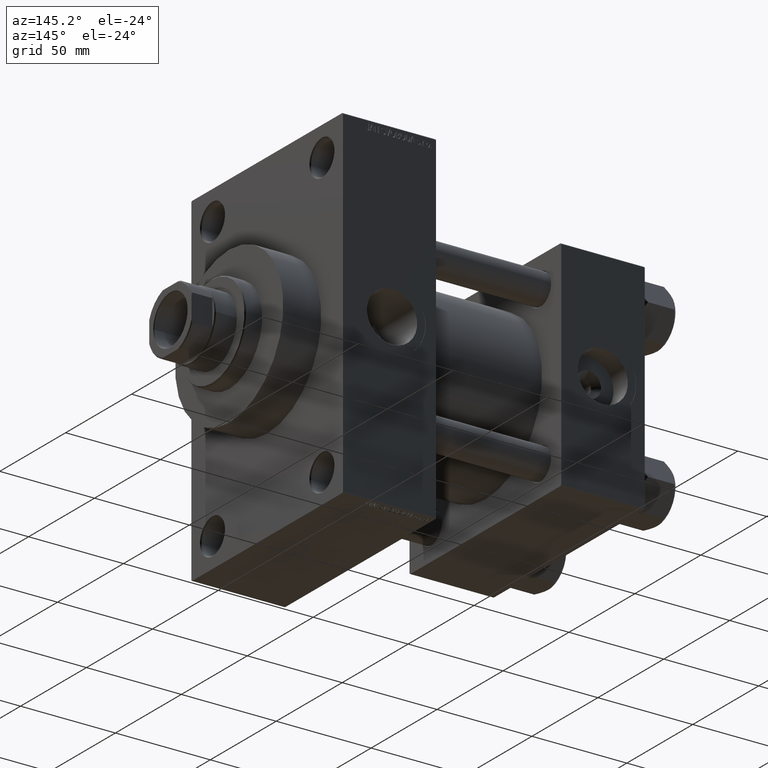
[diagram: clean part render]
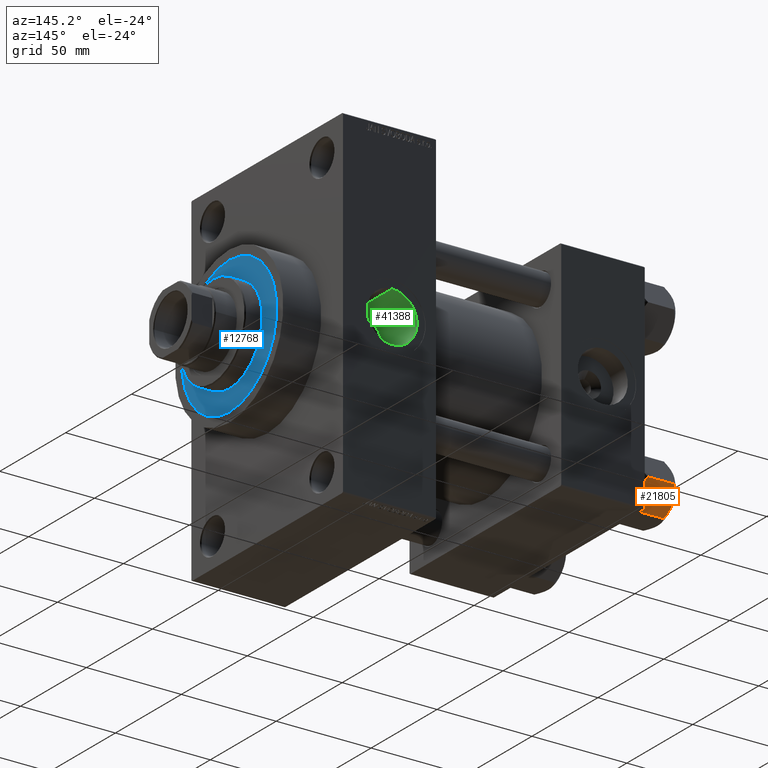
[diagram: same view with three faces highlighted in distinct colors, each labeled with its STEP entity id]
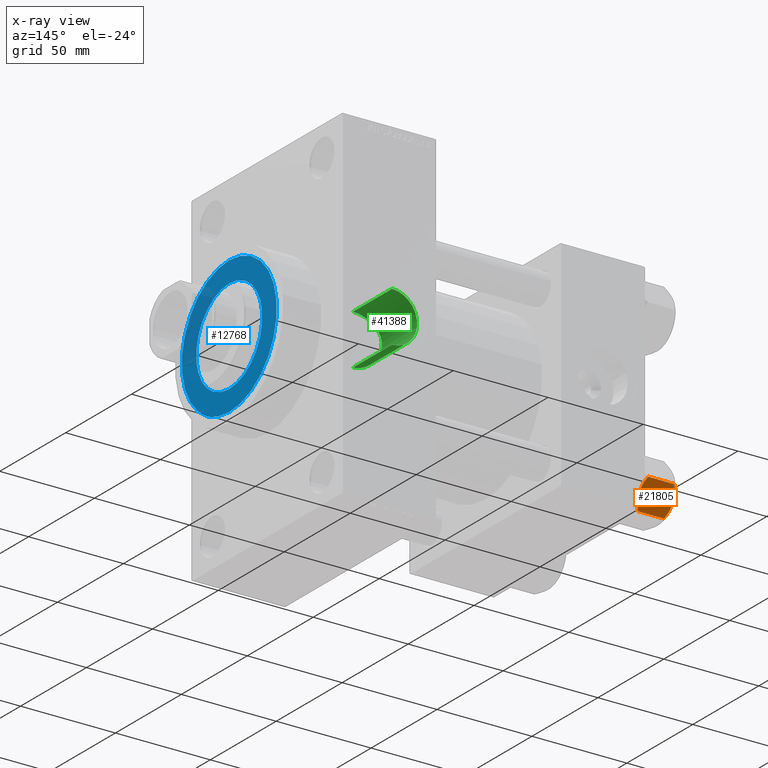
[diagram: x-ray of the same camera — body ghosted, the three highlighted faces saturated]
A machine part, auxiliary view with three faces highlighted in distinct colors.
The next image is the same camera in x-ray (body ghosted, the three faces saturated) — at least one of them is partly hidden behind the body in this view.
Their STEP definitions:

[orange] entity #21805 — the highlighted planar face has unit normal (0, -0.866, 0.5).
#545 = CARTESIAN_POINT ( 'NONE',  ( -15.52647173767732980, -0.1619957022864788043, -2.000000000000000000 ) ) ;
#819 = B_SPLINE_CURVE_WITH_KNOTS ( 'NONE', 3,
 ( #24653, #5610, #16383, #4851, #16640, #39864, #46594, #39119 ),
 .UNSPECIFIED., .F., .F.,
 ( 4, 2, 2, 4 ),
 ( 0.007890825462474451713, 0.01181022244528557794, 0.01376992093669113758, 0.01572961942809669722 ),
 .UNSPECIFIED. ) ;
#907 = CARTESIAN_POINT ( 'NONE',  ( -7.809999999999999609, -13.52731680711293727, -18.00000000000000000 ) ) ;
#988 = CARTESIAN_POINT ( 'NONE',  ( -12.38621571200405391, -5.601078687526916511, -0.05089381635300645190 ) ) ;
#3080 = CARTESIAN_POINT ( 'NONE',  ( -15.52647173767732980, -0.1619957022864788043, -16.00000000000000000 ) ) ;
#3160 = CARTESIAN_POINT ( 'NONE',  ( -15.61999999999999567, 8.023367828467702033E-15, -16.00000000000000000 ) ) ;
#3344 = DIRECTION ( 'NONE',  ( -0.000000000000000000, -0.000000000000000000, 1.000000000000000000 ) ) ;
#3966 = VECTOR ( 'NONE', #8742, 999.9999999999998863 ) ;
#4590 = EDGE_CURVE ( 'NONE', #35631, #41621, #32601, .T. ) ;
#4694 = VERTEX_POINT ( 'NONE', #545 ) ;
#4851 = CARTESIAN_POINT ( 'NONE',  ( -9.439480280627259745, -10.70497417113492311, -0.7317196846281081024 ) ) ;
#5108 = VECTOR ( 'NONE', #40088, 999.9999999999998863 ) ;
#5240 = CARTESIAN_POINT ( 'NONE',  ( -14.92760668674625002, -1.199260397376427090, -1.411989271640064825 ) ) ;
#5610 = CARTESIAN_POINT ( 'NONE',  ( -11.05297796109637787, -7.910314210667872103, 9.086969458144130882E-15 ) ) ;
#5678 = ORIENTED_EDGE ( 'NONE', *, *, #47580, .F. ) ;
#6084 = LINE ( 'NONE', #28640, #5108 ) ;
#6985 = LINE ( 'NONE', #22242, #46682 ) ;
#8092 = CARTESIAN_POINT ( 'NONE',  ( -7.809999999999999609, -13.52731680711293727, -18.00000000000000000 ) ) ;
#8467 = ORIENTED_EDGE ( 'NONE', *, *, #47167, .F. ) ;
#8742 = DIRECTION ( 'NONE',  ( -0.4999999999999994449, 0.8660254037844390407, 0.000000000000000000 ) ) ;
#8832 = B_SPLINE_CURVE_WITH_KNOTS ( 'NONE', 3,
 ( #37251, #18267, #33513, #44969, #47983, #26274, #10750, #26029 ),
 .UNSPECIFIED., .F., .F.,
 ( 4, 2, 2, 4 ),
 ( 4.472842641813524291E-07, 0.003945636373369312659, 0.005918230917921874813, 0.007890825462474436100 ),
 .UNSPECIFIED. ) ;
#9085 = VECTOR ( 'NONE', #25553, 1000.000000000000000 ) ;
#10069 = CARTESIAN_POINT ( 'NONE',  ( -15.61999999999999567, 8.023367828467702033E-15, -1.999999999999998224 ) ) ;
#10105 = CARTESIAN_POINT ( 'NONE',  ( -14.92394044919338825, -1.205610507090610461, -16.56553707812500065 ) ) ;
#10595 = CARTESIAN_POINT ( 'NONE',  ( -13.02784502466562699, -4.489744118371570281, -17.80281335400755083 ) ) ;
#10750 = CARTESIAN_POINT ( 'NONE',  ( -11.38181071908714692, -7.340759166634859945, -18.00000000000001421 ) ) ;
#11067 = CARTESIAN_POINT ( 'NONE',  ( -11.71500000000000874, -6.763658403556459753, 0.000000000000000000 ) ) ;
#11992 = LINE ( 'NONE', #39223, #3966 ) ;
#12713 = ORIENTED_EDGE ( 'NONE', *, *, #14435, .F. ) ;
#14104 = CARTESIAN_POINT ( 'NONE',  ( -13.99051971937274530, -2.822342635977989289, -17.26828031537188934 ) ) ;
#14435 = EDGE_CURVE ( 'NONE', #16475, #35631, #8832, .T. ) ;
#14815 = ORIENTED_EDGE ( 'NONE', *, *, #16165, .F. ) ;
#14905 = CARTESIAN_POINT ( 'NONE',  ( -7.809999999999999609, -13.52731680711293727, -16.00000000000000000 ) ) ;
#15675 = CARTESIAN_POINT ( 'NONE',  ( -7.903528262322674358, -13.36532110482643354, -2.000000000000000000 ) ) ;
#16165 = EDGE_CURVE ( 'NONE', #39768, #16475, #11992, .T. ) ;
#16383 = CARTESIAN_POINT ( 'NONE',  ( -10.40215497533437805, -9.037572688741340343, -0.1971866459924474513 ) ) ;
#16475 = VERTEX_POINT ( 'NONE', #36720 ) ;
#16640 = CARTESIAN_POINT ( 'NONE',  ( -9.124083218049237942, -11.25125790807803838, -0.9473872146228101698 ) ) ;
#16693 = PLANE ( 'NONE',  #27346 ) ;
#16885 = CARTESIAN_POINT ( 'NONE',  ( -11.71500000000000874, -6.763658403556459753, -18.00000000000000000 ) ) ;
#18045 = EDGE_CURVE ( 'NONE', #41879, #23836, #819, .T. ) ;
#18110 = CARTESIAN_POINT ( 'NONE',  ( -12.37702203890362540, -5.617002596445037632, -18.00000000000000711 ) ) ;
#18267 = CARTESIAN_POINT ( 'NONE',  ( -8.502393313253753249, -12.32805640973648664, -16.58801072835993651 ) ) ;
#19635 = ORIENTED_EDGE ( 'NONE', *, *, #45049, .T. ) ;
#21805 = ADVANCED_FACE ( 'NONE', ( #24704 ), #16693, .F. ) ;
#21853 = CARTESIAN_POINT ( 'NONE',  ( -11.71500000000000874, -6.763658403556459753, -18.00000000000000000 ) ) ;
#21987 = DIRECTION ( 'NONE',  ( 0.4999999999999994449, -0.8660254037844390407, 0.000000000000000000 ) ) ;
#22242 = CARTESIAN_POINT ( 'NONE',  ( -7.809999999999999609, -13.52731680711293727, -1.999999999999998224 ) ) ;
#22799 = ORIENTED_EDGE ( 'NONE', *, *, #18045, .F. ) ;
#23836 = VERTEX_POINT ( 'NONE', #15675 ) ;
#24653 = CARTESIAN_POINT ( 'NONE',  ( -11.71500000000000874, -6.763658403556459753, 0.000000000000000000 ) ) ;
#24704 = FACE_OUTER_BOUND ( 'NONE', #30567, .T. ) ;
#25553 = DIRECTION ( 'NONE',  ( -0.000000000000000000, -0.000000000000000000, 1.000000000000000000 ) ) ;
#26029 = CARTESIAN_POINT ( 'NONE',  ( -11.71500000000000874, -6.763658403556459753, -18.00000000000000000 ) ) ;
#26274 = CARTESIAN_POINT ( 'NONE',  ( -11.04378428799595468, -7.926238119585997666, -17.94910618364700028 ) ) ;
#27188 = CARTESIAN_POINT ( 'NONE',  ( -7.809999999999999609, -13.52731680711293727, -16.00000000000000000 ) ) ;
#27346 = AXIS2_PLACEMENT_3D ( 'NONE', #907, #42909, #46645 ) ;
#27537 = CARTESIAN_POINT ( 'NONE',  ( -13.04337073483128329, -4.462852799541069615, -0.2430846701012900901 ) ) ;
#27635 = VERTEX_POINT ( 'NONE', #36013 ) ;
#28038 = CARTESIAN_POINT ( 'NONE',  ( -12.04818928091285635, -6.186557640478051567, 9.103910117089220044E-15 ) ) ;
#28640 = CARTESIAN_POINT ( 'NONE',  ( -7.809999999999999609, -13.52731680711293727, -1.999999999999998224 ) ) ;
#29519 = EDGE_CURVE ( 'NONE', #40533, #41716, #49479, .T. ) ;
#29894 = B_SPLINE_CURVE_WITH_KNOTS ( 'NONE', 3,
 ( #38519, #5240, #35271, #35510, #27537, #988, #28038, #31044 ),
 .UNSPECIFIED., .F., .F.,
 ( 4, 2, 2, 4 ),
 ( 4.472842641982724416E-07, 0.003945636373369324802, 0.005918230917921887824, 0.007890825462474451713 ),
 .UNSPECIFIED. ) ;
#30025 = EDGE_CURVE ( 'NONE', #41716, #4694, #6084, .T. ) ;
#30567 = EDGE_LOOP ( 'NONE', ( #14815, #19635, #40251, #22799, #5678, #33522, #42205, #8467, #45359, #12713 ) ) ;
#31044 = CARTESIAN_POINT ( 'NONE',  ( -11.71500000000000874, -6.763658403556459753, 0.000000000000000000 ) ) ;
#32391 = VECTOR ( 'NONE', #3344, 1000.000000000000000 ) ;
#32601 = B_SPLINE_CURVE_WITH_KNOTS ( 'NONE', 3,
 ( #21853, #18110, #10595, #14104, #32618, #10105, #47835, #3080 ),
 .UNSPECIFIED., .F., .F.,
 ( 4, 2, 2, 4 ),
 ( 0.007890825462474436100, 0.01181022244528555712, 0.01376992093669111850, 0.01572961942809667987 ),
 .UNSPECIFIED. ) ;
#32618 = CARTESIAN_POINT ( 'NONE',  ( -14.30591678195076533, -2.276058899034876681, -17.05261278537718894 ) ) ;
#33513 = CARTESIAN_POINT ( 'NONE',  ( -9.114548888011787753, -11.26777185211903820, -17.08577173959730899 ) ) ;
#33522 = ORIENTED_EDGE ( 'NONE', *, *, #30025, .F. ) ;
#34596 = LINE ( 'NONE', #8092, #32391 ) ;
#35271 = CARTESIAN_POINT ( 'NONE',  ( -14.31545111198821552, -2.259544954993873311, -0.9142282604026915616 ) ) ;
#35510 = CARTESIAN_POINT ( 'NONE',  ( -13.36540581434588226, -3.905071680002305534, -0.3836066851120543686 ) ) ;
#35631 = VERTEX_POINT ( 'NONE', #16885 ) ;
#36013 = CARTESIAN_POINT ( 'NONE',  ( -7.809999999999999609, -13.52731680711293727, -1.999999999999998224 ) ) ;
#36720 = CARTESIAN_POINT ( 'NONE',  ( -7.903528262322674358, -13.36532110482643354, -16.00000000000000000 ) ) ;
#37251 = CARTESIAN_POINT ( 'NONE',  ( -7.903528262322674358, -13.36532110482643354, -16.00000000000000000 ) ) ;
#38519 = CARTESIAN_POINT ( 'NONE',  ( -15.52647173767732980, -0.1619957022864788043, -2.000000000000000000 ) ) ;
#39119 = CARTESIAN_POINT ( 'NONE',  ( -7.903528262322674358, -13.36532110482643354, -2.000000000000000000 ) ) ;
#39223 = CARTESIAN_POINT ( 'NONE',  ( -7.809999999999999609, -13.52731680711293727, -16.00000000000000000 ) ) ;
#39768 = VERTEX_POINT ( 'NONE', #14905 ) ;
#39864 = CARTESIAN_POINT ( 'NONE',  ( -8.506059550806618574, -12.32170630002230816, -1.434462921875002461 ) ) ;
#40088 = DIRECTION ( 'NONE',  ( 0.4999999999999994449, -0.8660254037844390407, 0.000000000000000000 ) ) ;
#40184 = CARTESIAN_POINT ( 'NONE',  ( -15.52647173767732980, -0.1619957022864788043, -16.00000000000000000 ) ) ;
#40251 = ORIENTED_EDGE ( 'NONE', *, *, #44316, .F. ) ;
#40533 = VERTEX_POINT ( 'NONE', #3160 ) ;
#41621 = VERTEX_POINT ( 'NONE', #40184 ) ;
#41716 = VERTEX_POINT ( 'NONE', #10069 ) ;
#41879 = VERTEX_POINT ( 'NONE', #11067 ) ;
#42205 = ORIENTED_EDGE ( 'NONE', *, *, #29519, .F. ) ;
#42909 = DIRECTION ( 'NONE',  ( 0.8660254037844390407, 0.4999999999999994449, 0.000000000000000000 ) ) ;
#43136 = LINE ( 'NONE', #27188, #47625 ) ;
#44316 = EDGE_CURVE ( 'NONE', #23836, #27635, #6985, .T. ) ;
#44744 = CARTESIAN_POINT ( 'NONE',  ( -15.61999999999999567, 8.023367828467702033E-15, -18.00000000000000000 ) ) ;
#44969 = CARTESIAN_POINT ( 'NONE',  ( -10.06459418565412456, -9.622245127110602425, -17.61639331488794014 ) ) ;
#45049 = EDGE_CURVE ( 'NONE', #39768, #27635, #34596, .T. ) ;
#45359 = ORIENTED_EDGE ( 'NONE', *, *, #4590, .F. ) ;
#46379 = DIRECTION ( 'NONE',  ( -0.4999999999999994449, 0.8660254037844390407, 0.000000000000000000 ) ) ;
#46594 = CARTESIAN_POINT ( 'NONE',  ( -8.202637790192643052, -12.84724820552771085, -1.706311779141444829 ) ) ;
#46645 = DIRECTION ( 'NONE',  ( -0.4999999999999993894, 0.8660254037844389297, 0.000000000000000000 ) ) ;
#46682 = VECTOR ( 'NONE', #21987, 999.9999999999998863 ) ;
#47167 = EDGE_CURVE ( 'NONE', #41621, #40533, #43136, .T. ) ;
#47580 = EDGE_CURVE ( 'NONE', #4694, #41879, #29894, .T. ) ;
#47625 = VECTOR ( 'NONE', #46379, 999.9999999999998863 ) ;
#47835 = CARTESIAN_POINT ( 'NONE',  ( -15.22736220980736199, -0.6800686015852018818, -16.29368822085855584 ) ) ;
#47983 = CARTESIAN_POINT ( 'NONE',  ( -10.38662926516872353, -9.064464007571846338, -17.75691532989871746 ) ) ;
#49479 = LINE ( 'NONE', #44744, #9085 ) ;

[blue] entity #12768 — the highlighted planar face has unit normal (1, -0, -0).
#77 = AXIS2_PLACEMENT_3D ( 'NONE', #7426, #3908, #6945 ) ;
#953 = EDGE_CURVE ( 'NONE', #26087, #32863, #30811, .T. ) ;
#2527 = ORIENTED_EDGE ( 'NONE', *, *, #41818, .F. ) ;
#2665 = CIRCLE ( 'NONE', #17873, 36.00000000000000000 ) ;
#3562 = EDGE_LOOP ( 'NONE', ( #2527, #49485 ) ) ;
#3908 = DIRECTION ( 'NONE',  ( 0.000000000000000000, 0.000000000000000000, 1.000000000000000000 ) ) ;
#5097 = CARTESIAN_POINT ( 'NONE',  ( 25.00000000000000000, 3.061616997868383043E-15, 43.25999999999999801 ) ) ;
#6943 = CARTESIAN_POINT ( 'NONE',  ( 0.000000000000000000, 0.000000000000000000, 43.25999999999999801 ) ) ;
#6945 = DIRECTION ( 'NONE',  ( 1.000000000000000000, 0.000000000000000000, 0.000000000000000000 ) ) ;
#7426 = CARTESIAN_POINT ( 'NONE',  ( 0.000000000000000000, 0.000000000000000000, 43.25999999999999801 ) ) ;
#9822 = DIRECTION ( 'NONE',  ( 0.000000000000000000, 0.000000000000000000, 1.000000000000000000 ) ) ;
#10360 = AXIS2_PLACEMENT_3D ( 'NONE', #6943, #41419, #22201 ) ;
#12768 = ADVANCED_FACE ( 'NONE', ( #48909, #22686 ), #41171, .T. ) ;
#13109 = AXIS2_PLACEMENT_3D ( 'NONE', #13575, #9822, #40302 ) ;
#13575 = CARTESIAN_POINT ( 'NONE',  ( 0.000000000000000000, 0.000000000000000000, 43.25999999999999801 ) ) ;
#14846 = CARTESIAN_POINT ( 'NONE',  ( 0.000000000000000000, 0.000000000000000000, 43.25999999999999801 ) ) ;
#16899 = VERTEX_POINT ( 'NONE', #17586 ) ;
#17204 = CARTESIAN_POINT ( 'NONE',  ( 0.000000000000000000, 0.000000000000000000, 43.25999999999999801 ) ) ;
#17250 = AXIS2_PLACEMENT_3D ( 'NONE', #14846, #18120, #33609 ) ;
#17586 = CARTESIAN_POINT ( 'NONE',  ( -25.00000000000000000, 0.000000000000000000, 43.25999999999999801 ) ) ;
#17873 = AXIS2_PLACEMENT_3D ( 'NONE', #17204, #40177, #36187 ) ;
#18120 = DIRECTION ( 'NONE',  ( 0.000000000000000000, 0.000000000000000000, 1.000000000000000000 ) ) ;
#19944 = EDGE_CURVE ( 'NONE', #24888, #16899, #36825, .T. ) ;
#22201 = DIRECTION ( 'NONE',  ( 1.000000000000000000, 0.000000000000000000, -0.000000000000000000 ) ) ;
#22593 = ORIENTED_EDGE ( 'NONE', *, *, #953, .T. ) ;
#22686 = FACE_OUTER_BOUND ( 'NONE', #25631, .T. ) ;
#24855 = CARTESIAN_POINT ( 'NONE',  ( -36.00000000000000000, 0.000000000000000000, 43.25999999999999801 ) ) ;
#24888 = VERTEX_POINT ( 'NONE', #5097 ) ;
#25631 = EDGE_LOOP ( 'NONE', ( #43915, #22593 ) ) ;
#26087 = VERTEX_POINT ( 'NONE', #26496 ) ;
#26496 = CARTESIAN_POINT ( 'NONE',  ( 36.00000000000000000, 4.408728476930470856E-15, 43.25999999999999801 ) ) ;
#26723 = CIRCLE ( 'NONE', #13109, 25.00000000000000000 ) ;
#30811 = CIRCLE ( 'NONE', #17250, 36.00000000000000000 ) ;
#32863 = VERTEX_POINT ( 'NONE', #24855 ) ;
#33609 = DIRECTION ( 'NONE',  ( 1.000000000000000000, 0.000000000000000000, 0.000000000000000000 ) ) ;
#36187 = DIRECTION ( 'NONE',  ( 1.000000000000000000, 0.000000000000000000, 0.000000000000000000 ) ) ;
#36825 = CIRCLE ( 'NONE', #77, 25.00000000000000000 ) ;
#40177 = DIRECTION ( 'NONE',  ( 0.000000000000000000, 0.000000000000000000, 1.000000000000000000 ) ) ;
#40302 = DIRECTION ( 'NONE',  ( 1.000000000000000000, 0.000000000000000000, 0.000000000000000000 ) ) ;
#40417 = EDGE_CURVE ( 'NONE', #32863, #26087, #2665, .T. ) ;
#41171 = PLANE ( 'NONE',  #10360 ) ;
#41419 = DIRECTION ( 'NONE',  ( 0.000000000000000000, 0.000000000000000000, 1.000000000000000000 ) ) ;
#41818 = EDGE_CURVE ( 'NONE', #16899, #24888, #26723, .T. ) ;
#43915 = ORIENTED_EDGE ( 'NONE', *, *, #40417, .T. ) ;
#48909 = FACE_BOUND ( 'NONE', #3562, .T. ) ;
#49485 = ORIENTED_EDGE ( 'NONE', *, *, #19944, .F. ) ;

[green] entity #41388 — the highlighted cylindrical surface (edge-blend (fillet) strip) has radius 13.22 mm, axis along (0, 1, 0).
#915 = LINE ( 'NONE', #42414, #13375 ) ;
#1186 = AXIS2_PLACEMENT_3D ( 'NONE', #21742, #25268, #2717 ) ;
#2563 = CARTESIAN_POINT ( 'NONE',  ( 124.9281227878339138, 28.63858607160263503, 10.50431777856408644 ) ) ;
#2717 = DIRECTION ( 'NONE',  ( 0.000000000000000000, 0.000000000000000000, 1.000000000000000000 ) ) ;
#2803 = CARTESIAN_POINT ( 'NONE',  ( 120.4679325324748191, 30.20664084182535092, 4.297209666760982927 ) ) ;
#3058 = CARTESIAN_POINT ( 'NONE',  ( 119.9539540884254194, 30.42490378525658912, -2.182073551656494192 ) ) ;
#3304 = CARTESIAN_POINT ( 'NONE',  ( 120.9688359929165529, 30.00345340705710484, 5.496096261651264747 ) ) ;
#3789 = ORIENTED_EDGE ( 'NONE', *, *, #9735, .T. ) ;
#6069 = CARTESIAN_POINT ( 'NONE',  ( 119.8013461985024151, 30.49072874999575333, 0.8694038958844033660 ) ) ;
#6327 = CARTESIAN_POINT ( 'NONE',  ( 124.2692940852287649, 28.83355129473326173, 9.964195618804392751 ) ) ;
#6823 = CARTESIAN_POINT ( 'NONE',  ( 120.4685199682433563, 30.20641809402191313, -4.297876255341979146 ) ) ;
#7073 = CARTESIAN_POINT ( 'NONE',  ( 127.5114368039678396, 28.02591568851866199, 12.03457684883715295 ) ) ;
#8215 = B_SPLINE_CURVE_WITH_KNOTS ( 'NONE', 3,
 ( #48303, #13830, #22077, #41059, #17597, #36834, #29107, #29847, #45041, #29608, #18337, #33828, #25609, #14081, #40318, #32841, #29358, #37328, #10577, #21335, #14576, #6823, #40816, #3058, #10084, #9836, #10827, #6069, #22327, #48054, #41304, #2803, #3304, #18091, #33584, #25359, #33335, #40574, #6327, #2563, #44559, #13590, #26098, #7073, #21833, #37575, #37079, #28860, #48559, #14334, #36584 ),
 .UNSPECIFIED., .F., .F.,
 ( 4, 2, 2, 2, 2, 2, 2, 2, 2, 2, 2, 2, 2, 1, 2, 2, 2, 2, 2, 2, 2, 2, 2, 2, 2, 4 ),
 ( 0.002754153663978152478, 0.004062516437761908711, 0.005370879211545664077, 0.007987604759113094144, 0.009295967532896808744, 0.01060433030668052334, 0.01191269308046423621, 0.01322105585424795081, 0.01583778140181540256, 0.01714614417559913104, 0.01845450694938285605, 0.02107123249695032341, 0.02237959527073405536, 0.02368795804451779077, 0.02499632081830152272, 0.02630468359208525467, 0.02892140913965272897, 0.03022977191343647826, 0.03153813468722022062, 0.03415486023478771921, 0.03677158578235521086, 0.03807994855613893587, 0.03938831132992266781, 0.04200503687749020110, 0.04331339965127396080, 0.04462176242505772744 ),
 .UNSPECIFIED. ) ;
#9735 = EDGE_CURVE ( 'NONE', #41323, #39608, #10620, .T. ) ;
#9836 = CARTESIAN_POINT ( 'NONE',  ( 119.8016197098933020, 30.49061029277923396, -0.8732651917226567084 ) ) ;
#10084 = CARTESIAN_POINT ( 'NONE',  ( 119.8882423611456574, 30.45321431514108212, -1.744031535636850094 ) ) ;
#10258 = CYLINDRICAL_SURFACE ( 'NONE', #28272, 13.22000000000001307 ) ;
#10577 = CARTESIAN_POINT ( 'NONE',  ( 121.5614440612741873, 29.77056435191716233, -6.641941253706504789 ) ) ;
#10620 = LINE ( 'NONE', #21880, #39855 ) ;
#10827 = CARTESIAN_POINT ( 'NONE',  ( 119.7585171757667268, 30.50933037514183255, -0.002213193433015408704 ) ) ;
#13375 = VECTOR ( 'NONE', #46166, 1000.000000000000000 ) ;
#13590 = CARTESIAN_POINT ( 'NONE',  ( 126.3573543356692994, 28.27488614521973531, 11.43808039888181050 ) ) ;
#13830 = CARTESIAN_POINT ( 'NONE',  ( 132.5630876172685646, 27.48602554026317435, -13.22000000000001130 ) ) ;
#14081 = CARTESIAN_POINT ( 'NONE',  ( 124.2686470771429583, 28.83777926242716916, -9.935610708511816824 ) ) ;
#14334 = CARTESIAN_POINT ( 'NONE',  ( 132.5629713580258340, 27.48602554026318145, 13.22000000000001663 ) ) ;
#14576 = CARTESIAN_POINT ( 'NONE',  ( 120.9660187644721958, 30.00458848156678116, -5.489720270296277072 ) ) ;
#15431 = VERTEX_POINT ( 'NONE', #20228 ) ;
#17597 = CARTESIAN_POINT ( 'NONE',  ( 130.8118677490201662, 27.56971303005521889, -13.04492123339342413 ) ) ;
#18009 = DIRECTION ( 'NONE',  ( 0.000000000000000000, 0.000000000000000000, 1.000000000000000000 ) ) ;
#18091 = CARTESIAN_POINT ( 'NONE',  ( 121.1568841476471334, 29.92833431708755754, 5.890380410537630063 ) ) ;
#18173 = ORIENTED_EDGE ( 'NONE', *, *, #23360, .F. ) ;
#18337 = CARTESIAN_POINT ( 'NONE',  ( 125.9846316835294715, 28.36511237314154954, -11.21318805483621439 ) ) ;
#19575 = VERTEX_POINT ( 'NONE', #31774 ) ;
#20228 = CARTESIAN_POINT ( 'NONE',  ( 133.0000000000000000, 57.29999999999996874, 13.22000000000001485 ) ) ;
#21160 = ORIENTED_EDGE ( 'NONE', *, *, #44185, .T. ) ;
#21183 = CARTESIAN_POINT ( 'NONE',  ( 133.0000000000000000, 57.29999999999996874, -13.22000000000001130 ) ) ;
#21335 = CARTESIAN_POINT ( 'NONE',  ( 121.1512758397886813, 29.93055636123488483, -5.879088480051307464 ) ) ;
#21742 = CARTESIAN_POINT ( 'NONE',  ( 133.0000000000000000, 57.29999999999996874, 2.216591108192586142E-15 ) ) ;
#21833 = CARTESIAN_POINT ( 'NONE',  ( 128.7086401575088530, 27.80793890582718575, 12.53397360185016751 ) ) ;
#21880 = CARTESIAN_POINT ( 'NONE',  ( 133.0000000000000000, -37.39180658914467159, -13.22000000000001130 ) ) ;
#22077 = CARTESIAN_POINT ( 'NONE',  ( 132.1247296157575590, 27.49644835323805481, -13.19839776607381232 ) ) ;
#22249 = CARTESIAN_POINT ( 'NONE',  ( 133.0000000000000000, -37.39180658914467159, 2.216591108192586142E-15 ) ) ;
#22327 = CARTESIAN_POINT ( 'NONE',  ( 119.8878616282936349, 30.45337830541635427, 1.741307734776592842 ) ) ;
#23360 = EDGE_CURVE ( 'NONE', #41323, #19575, #8215, .T. ) ;
#25268 = DIRECTION ( 'NONE',  ( 0.000000000000000000, 1.000000000000000000, 0.000000000000000000 ) ) ;
#25359 = CARTESIAN_POINT ( 'NONE',  ( 121.7901718132497564, 29.68320521237495058, 7.020775927060610933 ) ) ;
#25609 = CARTESIAN_POINT ( 'NONE',  ( 124.9319936495800079, 28.64391236188601653, -10.48141963400769683 ) ) ;
#26098 = CARTESIAN_POINT ( 'NONE',  ( 127.1170270225384655, 28.10611705940239347, 11.84673176785872784 ) ) ;
#28272 = AXIS2_PLACEMENT_3D ( 'NONE', #22249, #40738, #18009 ) ;
#28860 = CARTESIAN_POINT ( 'NONE',  ( 131.2447446235479731, 27.53850861888605550, 13.11041265682185220 ) ) ;
#29107 = CARTESIAN_POINT ( 'NONE',  ( 128.7038069896121044, 27.80854256237212851, -12.53272670329833360 ) ) ;
#29358 = CARTESIAN_POINT ( 'NONE',  ( 122.5029478188191945, 29.41891500773208179, -8.081818494776422668 ) ) ;
#29608 = CARTESIAN_POINT ( 'NONE',  ( 126.3509113235082282, 28.27642091458140072, -11.43427474454871984 ) ) ;
#29847 = CARTESIAN_POINT ( 'NONE',  ( 127.4988406592393346, 28.02834985077835839, -12.02893071549087978 ) ) ;
#29975 = CIRCLE ( 'NONE', #1186, 13.22000000000001307 ) ;
#30276 = EDGE_LOOP ( 'NONE', ( #18173, #3789, #21160, #37852 ) ) ;
#31774 = CARTESIAN_POINT ( 'NONE',  ( 133.0000000000000000, 27.48602554026317435, 13.22000000000001485 ) ) ;
#31783 = CARTESIAN_POINT ( 'NONE',  ( 133.0000000000000000, 27.48602554026317790, -13.22000000000001130 ) ) ;
#32841 = CARTESIAN_POINT ( 'NONE',  ( 123.0435693730980233, 29.22816167062199355, -8.738857462746924654 ) ) ;
#33335 = CARTESIAN_POINT ( 'NONE',  ( 122.5064818290841799, 29.41766167487401518, 8.086225743477355010 ) ) ;
#33584 = CARTESIAN_POINT ( 'NONE',  ( 121.5678128989384419, 29.76811555703160650, 6.652899560298464188 ) ) ;
#33828 = CARTESIAN_POINT ( 'NONE',  ( 125.2751724914255789, 28.54885579777998572, -10.73676016923324461 ) ) ;
#36584 = CARTESIAN_POINT ( 'NONE',  ( 133.0000000000000000, 27.48602554026317435, 13.22000000000001485 ) ) ;
#36834 = CARTESIAN_POINT ( 'NONE',  ( 129.5317452415058028, 27.69094809350322350, -12.78661721735067225 ) ) ;
#37079 = CARTESIAN_POINT ( 'NONE',  ( 130.8112401324502798, 27.56977294276772739, 13.04479353247171147 ) ) ;
#37328 = CARTESIAN_POINT ( 'NONE',  ( 121.7858020356990778, 29.68485388067394481, -7.013846140792183270 ) ) ;
#37387 = EDGE_CURVE ( 'NONE', #19575, #15431, #915, .T. ) ;
#37575 = CARTESIAN_POINT ( 'NONE',  ( 129.5330934119418771, 27.69081946642616998, 12.78689137203122428 ) ) ;
#37852 = ORIENTED_EDGE ( 'NONE', *, *, #37387, .F. ) ;
#39608 = VERTEX_POINT ( 'NONE', #21183 ) ;
#39855 = VECTOR ( 'NONE', #41104, 1000.000000000000000 ) ;
#40318 = CARTESIAN_POINT ( 'NONE',  ( 123.9491770688922117, 28.93643597066152751, -9.645384358093913590 ) ) ;
#40574 = CARTESIAN_POINT ( 'NONE',  ( 123.0500870873057124, 29.22583140760916010, 8.746979657562990340 ) ) ;
#40738 = DIRECTION ( 'NONE',  ( -0.000000000000000000, 1.000000000000000000, -0.000000000000000000 ) ) ;
#40816 = CARTESIAN_POINT ( 'NONE',  ( 120.2139231164962752, 30.31403615046513167, -3.471897690908087863 ) ) ;
#41059 = CARTESIAN_POINT ( 'NONE',  ( 131.2450294334491048, 27.53849116212099091, -13.11044927329243670 ) ) ;
#41104 = DIRECTION ( 'NONE',  ( -0.000000000000000000, 1.000000000000000000, -0.000000000000000000 ) ) ;
#41304 = CARTESIAN_POINT ( 'NONE',  ( 120.2131270776470870, 30.31437331351282793, 3.468794298553413924 ) ) ;
#41323 = VERTEX_POINT ( 'NONE', #31783 ) ;
#41388 = ADVANCED_FACE ( 'NONE', ( #44476 ), #10258, .F. ) ;
#42414 = CARTESIAN_POINT ( 'NONE',  ( 133.0000000000000000, -37.39180658914467159, 13.22000000000001485 ) ) ;
#44185 = EDGE_CURVE ( 'NONE', #39608, #15431, #29975, .T. ) ;
#44476 = FACE_OUTER_BOUND ( 'NONE', #30276, .T. ) ;
#44559 = CARTESIAN_POINT ( 'NONE',  ( 125.9906816333217705, 28.36362276893643042, 11.21693939828879749 ) ) ;
#45041 = CARTESIAN_POINT ( 'NONE',  ( 127.1074280884345882, 28.10814834249481464, -11.84190083680431016 ) ) ;
#46166 = DIRECTION ( 'NONE',  ( -0.000000000000000000, 1.000000000000000000, -0.000000000000000000 ) ) ;
#48054 = CARTESIAN_POINT ( 'NONE',  ( 119.9536040940247119, 30.42505421030671542, 2.179912181504413127 ) ) ;
#48303 = CARTESIAN_POINT ( 'NONE',  ( 133.0000000000000000, 27.48602554026317790, -13.22000000000001130 ) ) ;
#48559 = CARTESIAN_POINT ( 'NONE',  ( 132.1245324006810904, 27.49645393561422679, 13.19838618738143410 ) ) ;